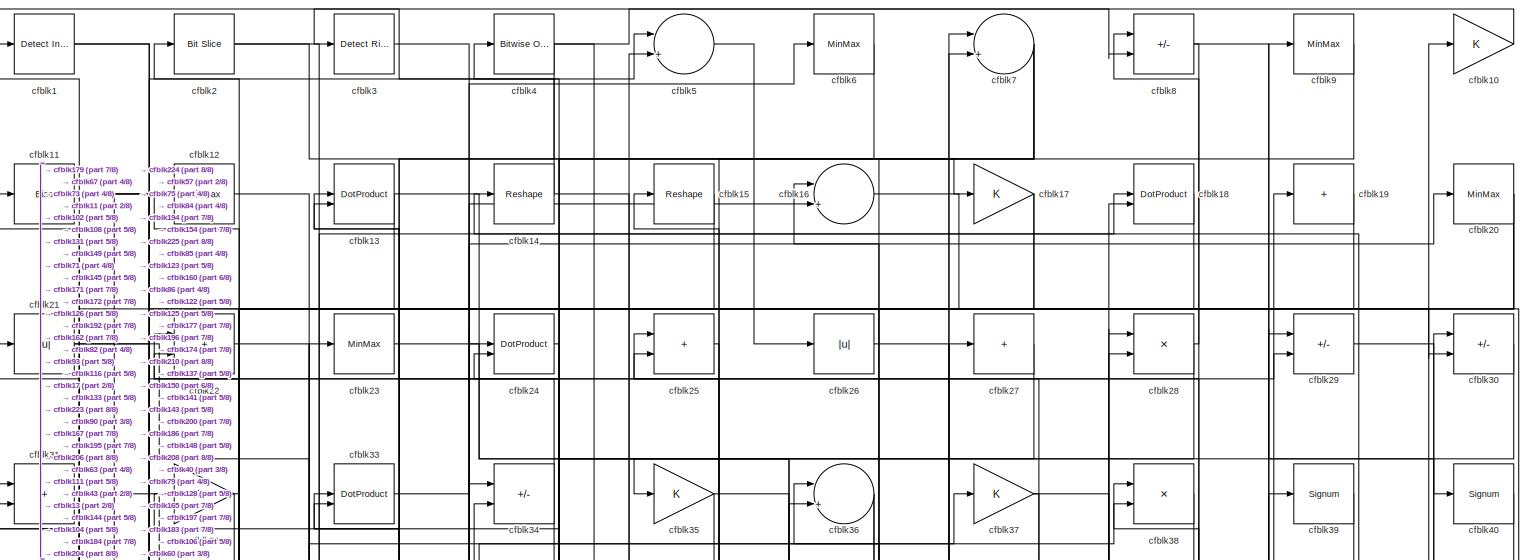
[diagram: root canvas - part 1/8, full width, top band]
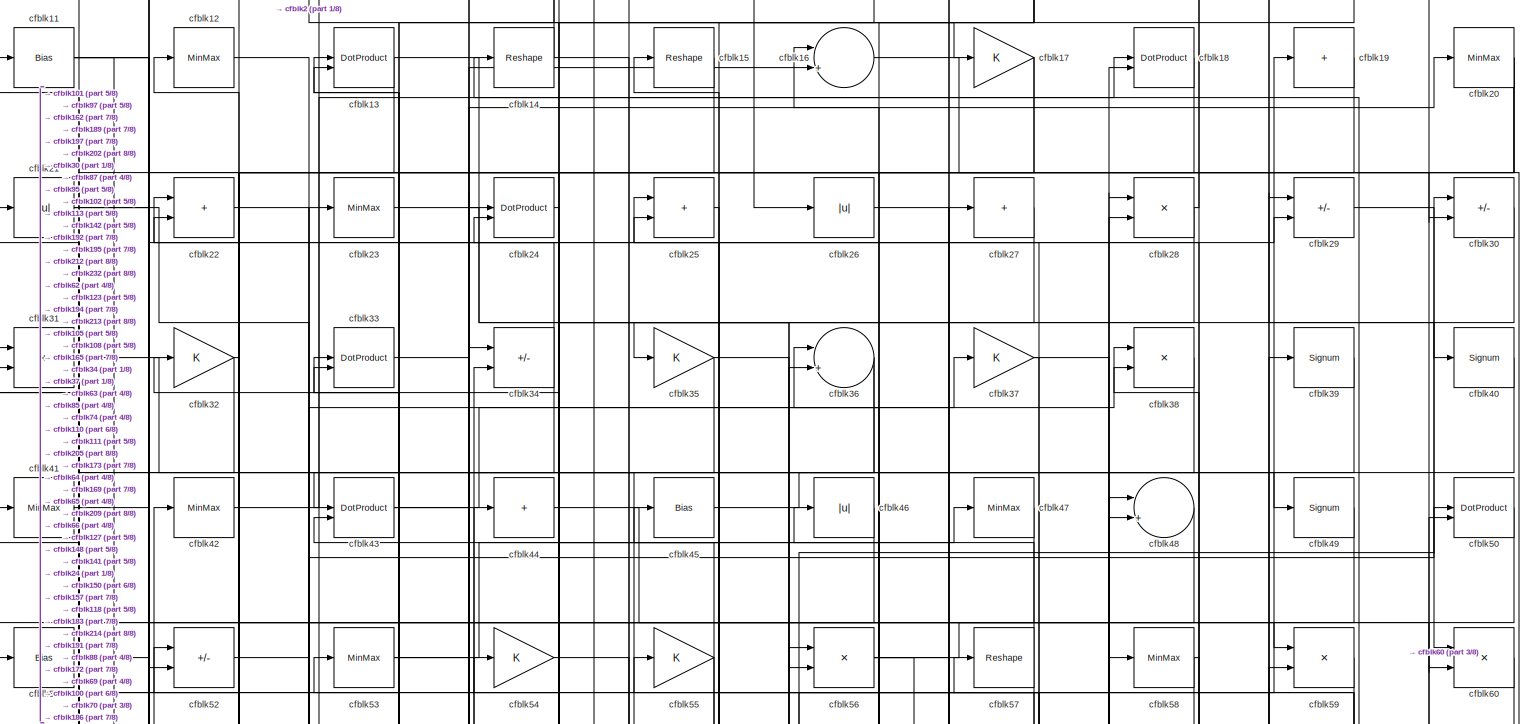
[diagram: root canvas - part 2/8, full width, top band]
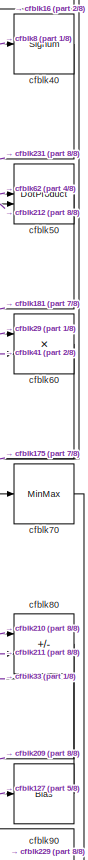
[diagram: root canvas - part 3/8, top right region]
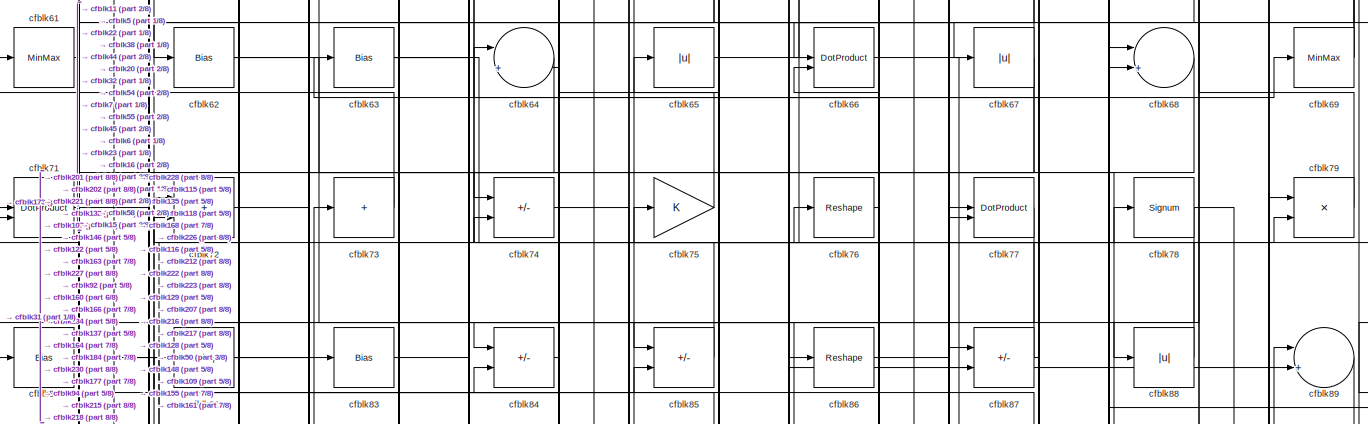
[diagram: root canvas - part 4/8, full width, top band]
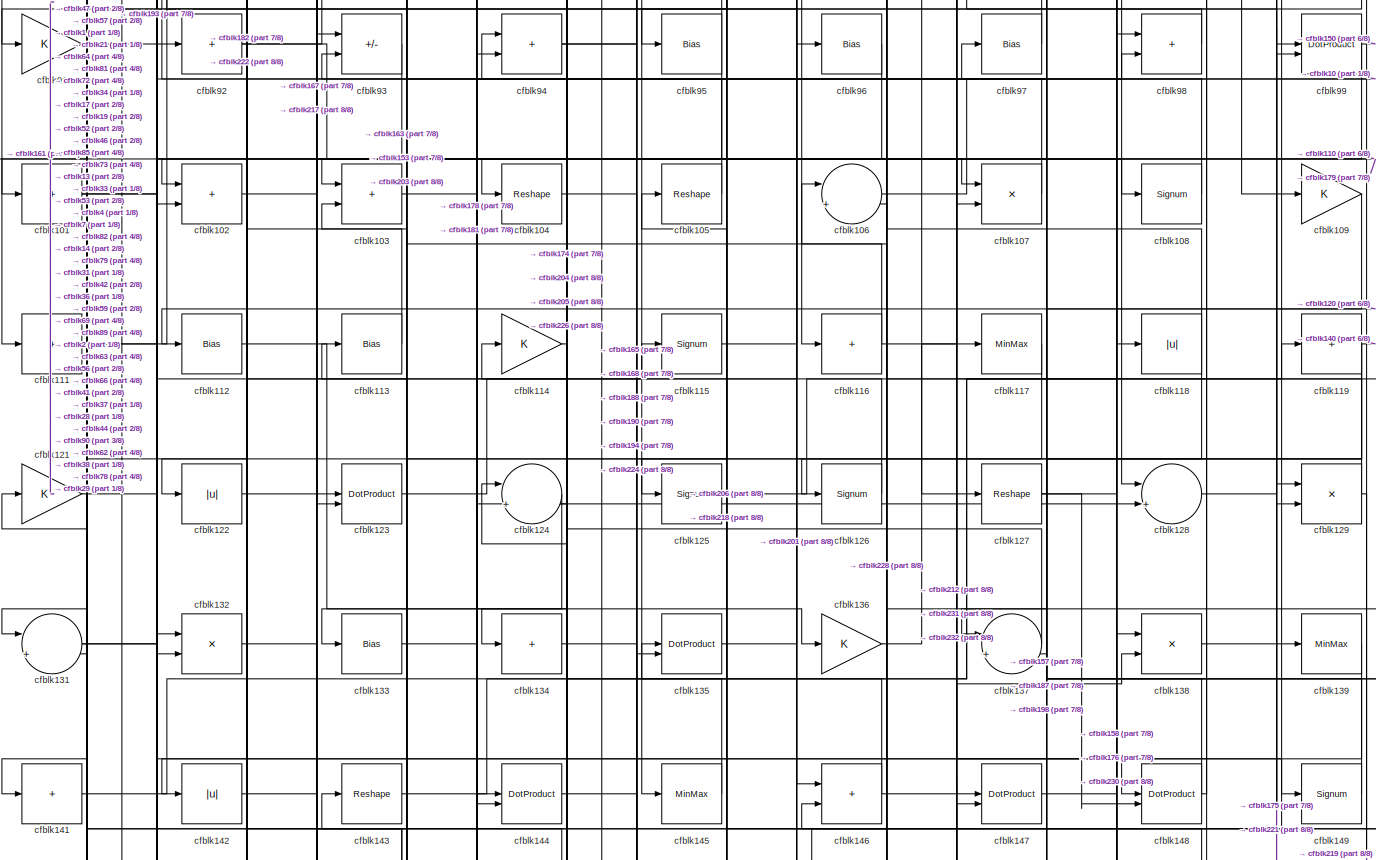
[diagram: root canvas - part 5/8, full width, middle band]
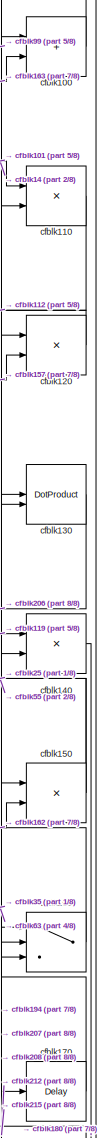
[diagram: root canvas - part 6/8, middle right region]
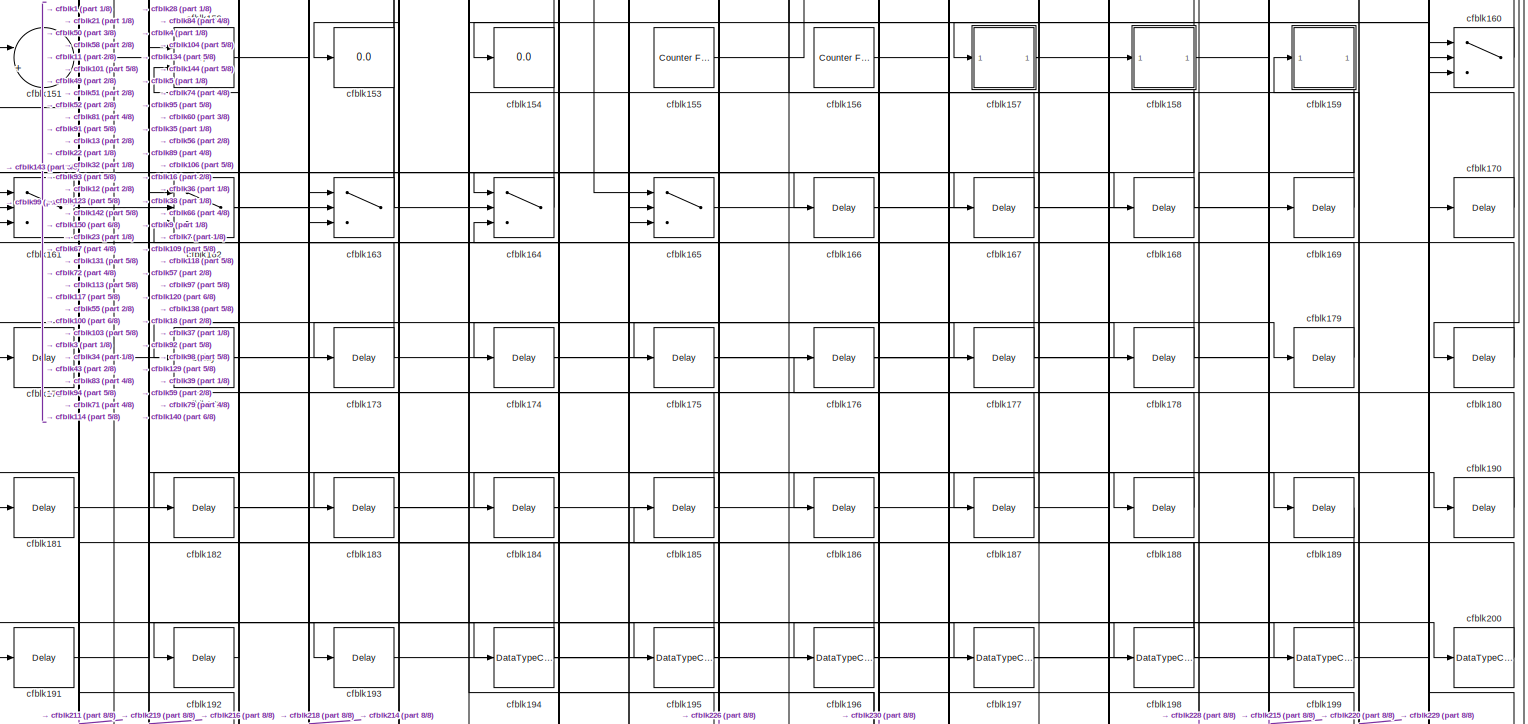
[diagram: root canvas - part 7/8, full width, bottom band]
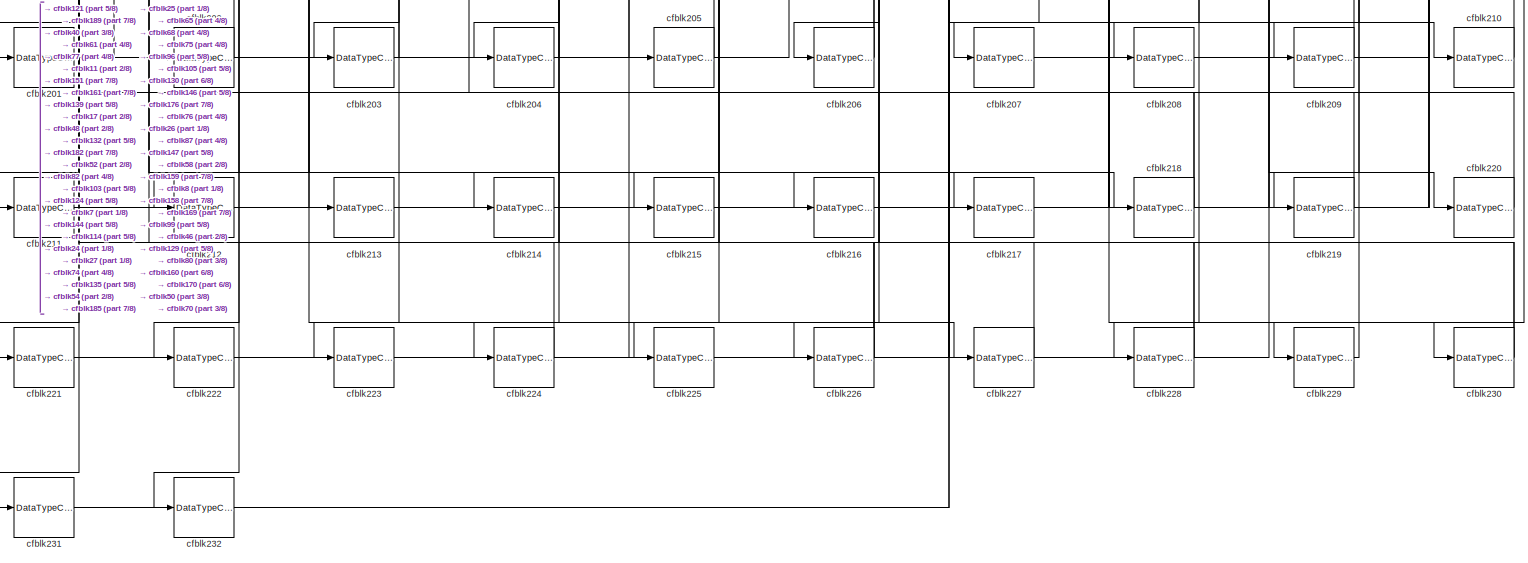
[diagram: root canvas - part 8/8, full width, bottom band]
MODEL slx_ea85b40ced68
KIND model
CONFIG AbsTol = auto
CONFIG EnableMultiTasking = off
CONFIG FixedStep = auto
CONFIG MaxStep = auto
CONFIG MinStep = auto
CONFIG RelTol = 1e-3
CONFIG SampleTimeConstraint = Unconstrained
CONFIG SolverName = VariableStepAuto
CONFIG StartTime = 0.0
CONFIG StopTime = 10.0
BLOCK [Reference] cfblk1  REF=simulink/Logic and Bit
Operations/Detect
Increase
  LibrarySourceBlock = hdlsllib/Logic and Bit\nOperations/Detect\nIncrease
  SourceBlock = simulink/Logic and Bit\nOperations/Detect\nIncrease
  SourceType = Detect Increase
BLOCK [Gain] cfblk10
BLOCK [Sum] cfblk100
  IconShape = rectangular
BLOCK [Sum] cfblk101
  IconShape = rectangular
  Inputs = +
BLOCK [Sum] cfblk102
  IconShape = rectangular
BLOCK [Sum] cfblk103
  IconShape = rectangular
BLOCK [Reshape] cfblk104
BLOCK [Reshape] cfblk105
BLOCK [Sum] cfblk106
  Inputs = |++
BLOCK [Product] cfblk107
  Inputs = */
  RndMeth = Zero
  SaturateOnIntegerOverflow = on
BLOCK [Signum] cfblk108
BLOCK [Gain] cfblk109
BLOCK [Bias] cfblk11
  Bias = 0.0
  SaturateOnIntegerOverflow = off
BLOCK [Product] cfblk110
  Inputs = */
  RndMeth = Zero
  SaturateOnIntegerOverflow = on
BLOCK [Sum] cfblk111
  IconShape = rectangular
  Inputs = +
BLOCK [Bias] cfblk112
  Bias = 0.0
  SaturateOnIntegerOverflow = off
BLOCK [Bias] cfblk113
  Bias = 0.0
  SaturateOnIntegerOverflow = off
BLOCK [Gain] cfblk114
BLOCK [Signum] cfblk115
BLOCK [Sum] cfblk116
  IconShape = rectangular
  Inputs = +
BLOCK [MinMax] cfblk117
BLOCK [Abs] cfblk118
  SaturateOnIntegerOverflow = off
BLOCK [Sum] cfblk119
  IconShape = rectangular
  Inputs = +
BLOCK [MinMax] cfblk12
BLOCK [Product] cfblk120
  Inputs = */
  RndMeth = Zero
  SaturateOnIntegerOverflow = on
BLOCK [Gain] cfblk121
BLOCK [Abs] cfblk122
  SaturateOnIntegerOverflow = off
BLOCK [DotProduct] cfblk123
  OutDataTypeStr = Inherit: Inherit via internal rule
BLOCK [Sum] cfblk124
  Inputs = |++
BLOCK [Signum] cfblk125
BLOCK [Signum] cfblk126
BLOCK [Reshape] cfblk127
BLOCK [Sum] cfblk128
  Inputs = |++
BLOCK [Product] cfblk129
  Inputs = */
  RndMeth = Zero
  SaturateOnIntegerOverflow = on
BLOCK [DotProduct] cfblk13
  OutDataTypeStr = Inherit: Inherit via internal rule
BLOCK [DotProduct] cfblk130
  OutDataTypeStr = Inherit: Inherit via internal rule
BLOCK [Sum] cfblk131
  Inputs = |++
BLOCK [Product] cfblk132
  Inputs = */
  RndMeth = Zero
  SaturateOnIntegerOverflow = on
BLOCK [Bias] cfblk133
  Bias = 0.0
  SaturateOnIntegerOverflow = off
BLOCK [Sum] cfblk134
  IconShape = rectangular
  Inputs = +
BLOCK [DotProduct] cfblk135
  OutDataTypeStr = Inherit: Inherit via internal rule
BLOCK [Gain] cfblk136
BLOCK [Sum] cfblk137
  Inputs = |++
BLOCK [Product] cfblk138
  Inputs = */
  RndMeth = Zero
  SaturateOnIntegerOverflow = on
BLOCK [MinMax] cfblk139
BLOCK [Reshape] cfblk14
BLOCK [Product] cfblk140
  Inputs = */
  RndMeth = Zero
  SaturateOnIntegerOverflow = on
BLOCK [Sum] cfblk141
  IconShape = rectangular
  Inputs = +
BLOCK [Abs] cfblk142
  SaturateOnIntegerOverflow = off
BLOCK [Reshape] cfblk143
BLOCK [DotProduct] cfblk144
  OutDataTypeStr = Inherit: Inherit via internal rule
BLOCK [MinMax] cfblk145
BLOCK [Sum] cfblk146
  IconShape = rectangular
BLOCK [DotProduct] cfblk147
  OutDataTypeStr = Inherit: Inherit via internal rule
BLOCK [DotProduct] cfblk148
  OutDataTypeStr = Inherit: Inherit via internal rule
BLOCK [Signum] cfblk149
BLOCK [Reshape] cfblk15
BLOCK [Product] cfblk150
  Inputs = */
  RndMeth = Zero
  SaturateOnIntegerOverflow = on
BLOCK [Sum] cfblk151
  Inputs = |++
BLOCK [Sum] cfblk152
  IconShape = rectangular
  Inputs = +-
BLOCK [Display] cfblk153
  Decimation = 1
BLOCK [Display] cfblk154
  Decimation = 1
BLOCK [Reference] cfblk155  REF=hdlsllib/Sources/Counter
Free-Running
  SourceBlock = hdlsllib/Sources/Counter\nFree-Running
  SourceType = Counter Free-Running
BLOCK [Reference] cfblk156  REF=hdlsllib/Sources/Counter
Free-Running
  SourceBlock = hdlsllib/Sources/Counter\nFree-Running
  SourceType = Counter Free-Running
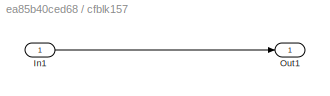
BLOCK [SubSystem] cfblk157
  LibrarySourceBlock = hdlsllib/Ports &\nSubsystems/Subsystem
BLOCK [Inport] cfblk157/In1
BLOCK [Outport] cfblk157/Out1
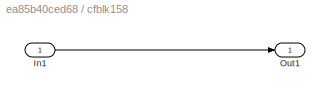
BLOCK [SubSystem] cfblk158
  LibrarySourceBlock = hdlsllib/Ports &\nSubsystems/Subsystem
BLOCK [Inport] cfblk158/In1
BLOCK [Outport] cfblk158/Out1
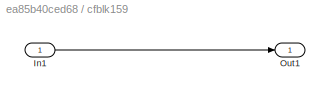
BLOCK [SubSystem] cfblk159
  LibrarySourceBlock = hdlsllib/Ports &\nSubsystems/Subsystem
BLOCK [Inport] cfblk159/In1
BLOCK [Outport] cfblk159/Out1
BLOCK [Sum] cfblk16
  Inputs = |++
BLOCK [Switch] cfblk160
  InputSameDT = off
  SaturateOnIntegerOverflow = off
BLOCK [Switch] cfblk161
  InputSameDT = off
  SaturateOnIntegerOverflow = off
BLOCK [Switch] cfblk162
  InputSameDT = off
  SaturateOnIntegerOverflow = off
BLOCK [Switch] cfblk163
  InputSameDT = off
  SaturateOnIntegerOverflow = off
BLOCK [Switch] cfblk164
  InputSameDT = off
  SaturateOnIntegerOverflow = off
BLOCK [Switch] cfblk165
  InputSameDT = off
  SaturateOnIntegerOverflow = off
BLOCK [Delay] cfblk166
  InputPortMap = u0
  SampleTime = 1
BLOCK [Delay] cfblk167
  InputPortMap = u0
  SampleTime = 1
BLOCK [Delay] cfblk168
  InputPortMap = u0
  SampleTime = 1
BLOCK [Delay] cfblk169
  InputPortMap = u0
  SampleTime = 1
BLOCK [Gain] cfblk17
BLOCK [Delay] cfblk170
  InputPortMap = u0
  SampleTime = 1
BLOCK [Delay] cfblk171
  InputPortMap = u0
  SampleTime = 1
BLOCK [Delay] cfblk172
  InputPortMap = u0
  SampleTime = 1
BLOCK [Delay] cfblk173
  InputPortMap = u0
  SampleTime = 1
BLOCK [Delay] cfblk174
  InputPortMap = u0
  SampleTime = 1
BLOCK [Delay] cfblk175
  InputPortMap = u0
  SampleTime = 1
BLOCK [Delay] cfblk176
  InputPortMap = u0
  SampleTime = 1
BLOCK [Delay] cfblk177
  InputPortMap = u0
  SampleTime = 1
BLOCK [Delay] cfblk178
  InputPortMap = u0
  SampleTime = 1
BLOCK [Delay] cfblk179
  InputPortMap = u0
  SampleTime = 1
BLOCK [DotProduct] cfblk18
  OutDataTypeStr = Inherit: Inherit via internal rule
BLOCK [Delay] cfblk180
  InputPortMap = u0
  SampleTime = 1
BLOCK [Delay] cfblk181
  InputPortMap = u0
  SampleTime = 1
BLOCK [Delay] cfblk182
  InputPortMap = u0
  SampleTime = 1
BLOCK [Delay] cfblk183
  InputPortMap = u0
  SampleTime = 1
BLOCK [Delay] cfblk184
  InputPortMap = u0
  SampleTime = 1
BLOCK [Delay] cfblk185
  InputPortMap = u0
  SampleTime = 1
BLOCK [Delay] cfblk186
  InputPortMap = u0
  SampleTime = 1
BLOCK [Delay] cfblk187
  InputPortMap = u0
  SampleTime = 1
BLOCK [Delay] cfblk188
  InputPortMap = u0
  SampleTime = 1
BLOCK [Delay] cfblk189
  InputPortMap = u0
  SampleTime = 1
BLOCK [Sum] cfblk19
  IconShape = rectangular
  Inputs = +
BLOCK [Delay] cfblk190
  InputPortMap = u0
  SampleTime = 1
BLOCK [Delay] cfblk191
  InputPortMap = u0
  SampleTime = 1
BLOCK [Delay] cfblk192
  InputPortMap = u0
  SampleTime = 1
BLOCK [Delay] cfblk193
  InputPortMap = u0
  SampleTime = 1
BLOCK [DataTypeConversion] cfblk194
  RndMeth = Floor
  SaturateOnIntegerOverflow = off
BLOCK [DataTypeConversion] cfblk195
  OutDataTypeStr = uint8
  RndMeth = Floor
  SaturateOnIntegerOverflow = off
BLOCK [DataTypeConversion] cfblk196
  OutDataTypeStr = uint8
  RndMeth = Floor
  SaturateOnIntegerOverflow = off
BLOCK [DataTypeConversion] cfblk197
  OutDataTypeStr = uint8
  RndMeth = Floor
  SaturateOnIntegerOverflow = off
BLOCK [DataTypeConversion] cfblk198
  RndMeth = Floor
  SaturateOnIntegerOverflow = off
BLOCK [DataTypeConversion] cfblk199
  OutDataTypeStr = uint8
  RndMeth = Floor
  SaturateOnIntegerOverflow = off
BLOCK [Reference] cfblk2  REF=hdlsllib/Logic and Bit
Operations/Bit Slice
  SourceBlock = hdlsllib/Logic and Bit\nOperations/Bit Slice
  SourceType = Bit Slice
BLOCK [MinMax] cfblk20
BLOCK [DataTypeConversion] cfblk200
  OutDataTypeStr = uint8
  RndMeth = Floor
  SaturateOnIntegerOverflow = off
BLOCK [DataTypeConversion] cfblk201
  OutDataTypeStr = uint8
  RndMeth = Floor
  SaturateOnIntegerOverflow = off
BLOCK [DataTypeConversion] cfblk202
  OutDataTypeStr = uint8
  RndMeth = Floor
  SaturateOnIntegerOverflow = off
BLOCK [DataTypeConversion] cfblk203
  OutDataTypeStr = uint8
  RndMeth = Floor
  SaturateOnIntegerOverflow = off
BLOCK [DataTypeConversion] cfblk204
  OutDataTypeStr = uint8
  RndMeth = Floor
  SaturateOnIntegerOverflow = off
BLOCK [DataTypeConversion] cfblk205
  OutDataTypeStr = uint8
  RndMeth = Floor
  SaturateOnIntegerOverflow = off
BLOCK [DataTypeConversion] cfblk206
  RndMeth = Floor
  SaturateOnIntegerOverflow = off
BLOCK [DataTypeConversion] cfblk207
  OutDataTypeStr = uint8
  RndMeth = Floor
  SaturateOnIntegerOverflow = off
BLOCK [DataTypeConversion] cfblk208
  OutDataTypeStr = uint8
  RndMeth = Floor
  SaturateOnIntegerOverflow = off
BLOCK [DataTypeConversion] cfblk209
  OutDataTypeStr = uint8
  RndMeth = Floor
  SaturateOnIntegerOverflow = off
BLOCK [Abs] cfblk21
  SaturateOnIntegerOverflow = off
BLOCK [DataTypeConversion] cfblk210
  OutDataTypeStr = uint8
  RndMeth = Floor
  SaturateOnIntegerOverflow = off
BLOCK [DataTypeConversion] cfblk211
  OutDataTypeStr = uint8
  RndMeth = Floor
  SaturateOnIntegerOverflow = off
BLOCK [DataTypeConversion] cfblk212
  RndMeth = Floor
  SaturateOnIntegerOverflow = off
BLOCK [DataTypeConversion] cfblk213
  OutDataTypeStr = uint8
  RndMeth = Floor
  SaturateOnIntegerOverflow = off
BLOCK [DataTypeConversion] cfblk214
  OutDataTypeStr = uint8
  RndMeth = Floor
  SaturateOnIntegerOverflow = off
BLOCK [DataTypeConversion] cfblk215
  RndMeth = Floor
  SaturateOnIntegerOverflow = off
BLOCK [DataTypeConversion] cfblk216
  OutDataTypeStr = uint8
  RndMeth = Floor
  SaturateOnIntegerOverflow = off
BLOCK [DataTypeConversion] cfblk217
  OutDataTypeStr = uint8
  RndMeth = Floor
  SaturateOnIntegerOverflow = off
BLOCK [DataTypeConversion] cfblk218
  RndMeth = Floor
  SaturateOnIntegerOverflow = off
BLOCK [DataTypeConversion] cfblk219
  OutDataTypeStr = uint8
  RndMeth = Floor
  SaturateOnIntegerOverflow = off
BLOCK [Sum] cfblk22
  IconShape = rectangular
BLOCK [DataTypeConversion] cfblk220
  OutDataTypeStr = uint8
  RndMeth = Floor
  SaturateOnIntegerOverflow = off
BLOCK [DataTypeConversion] cfblk221
  OutDataTypeStr = uint8
  RndMeth = Floor
  SaturateOnIntegerOverflow = off
BLOCK [DataTypeConversion] cfblk222
  OutDataTypeStr = uint8
  RndMeth = Floor
  SaturateOnIntegerOverflow = off
BLOCK [DataTypeConversion] cfblk223
  OutDataTypeStr = uint8
  RndMeth = Floor
  SaturateOnIntegerOverflow = off
BLOCK [DataTypeConversion] cfblk224
  RndMeth = Floor
  SaturateOnIntegerOverflow = off
BLOCK [DataTypeConversion] cfblk225
  OutDataTypeStr = uint8
  RndMeth = Floor
  SaturateOnIntegerOverflow = off
BLOCK [DataTypeConversion] cfblk226
  RndMeth = Floor
  SaturateOnIntegerOverflow = off
BLOCK [DataTypeConversion] cfblk227
  OutDataTypeStr = uint8
  RndMeth = Floor
  SaturateOnIntegerOverflow = off
BLOCK [DataTypeConversion] cfblk228
  RndMeth = Floor
  SaturateOnIntegerOverflow = off
BLOCK [DataTypeConversion] cfblk229
  OutDataTypeStr = uint8
  RndMeth = Floor
  SaturateOnIntegerOverflow = off
BLOCK [MinMax] cfblk23
BLOCK [DataTypeConversion] cfblk230
  RndMeth = Floor
  SaturateOnIntegerOverflow = off
BLOCK [DataTypeConversion] cfblk231
  OutDataTypeStr = uint8
  RndMeth = Floor
  SaturateOnIntegerOverflow = off
BLOCK [DataTypeConversion] cfblk232
  OutDataTypeStr = uint8
  RndMeth = Floor
  SaturateOnIntegerOverflow = off
BLOCK [DotProduct] cfblk24
  OutDataTypeStr = Inherit: Inherit via internal rule
BLOCK [Sum] cfblk25
  IconShape = rectangular
BLOCK [Abs] cfblk26
  SaturateOnIntegerOverflow = off
BLOCK [Sum] cfblk27
  IconShape = rectangular
  Inputs = +
BLOCK [Product] cfblk28
  Inputs = */
  RndMeth = Zero
  SaturateOnIntegerOverflow = on
BLOCK [Sum] cfblk29
  IconShape = rectangular
  Inputs = +-
BLOCK [Reference] cfblk3  REF=hdlsllib/Logic and Bit
Operations/Detect Rise
Nonnegative
  SourceBlock = hdlsllib/Logic and Bit\nOperations/Detect Rise\nNonnegative
  SourceType = Detect Rise Nonnegative
BLOCK [Sum] cfblk30
  IconShape = rectangular
  Inputs = +-
BLOCK [Sum] cfblk31
  IconShape = rectangular
BLOCK [Gain] cfblk32
BLOCK [DotProduct] cfblk33
  OutDataTypeStr = Inherit: Inherit via internal rule
BLOCK [Sum] cfblk34
  IconShape = rectangular
  Inputs = +-
BLOCK [Gain] cfblk35
BLOCK [Sum] cfblk36
  Inputs = |++
BLOCK [Gain] cfblk37
BLOCK [Product] cfblk38
  Inputs = */
  RndMeth = Zero
  SaturateOnIntegerOverflow = on
BLOCK [Signum] cfblk39
BLOCK [Reference] cfblk4  REF=simulink/Logic and Bit
Operations/Bitwise
Operator
  LibrarySourceBlock = hdlsllib/Logic and Bit\nOperations/Bitwise\nOperator
  SourceBlock = simulink/Logic and Bit\nOperations/Bitwise\nOperator
  SourceType = Bitwise Operator
BLOCK [Signum] cfblk40
BLOCK [MinMax] cfblk41
BLOCK [MinMax] cfblk42
BLOCK [DotProduct] cfblk43
  OutDataTypeStr = Inherit: Inherit via internal rule
BLOCK [Sum] cfblk44
  IconShape = rectangular
  Inputs = +
BLOCK [Bias] cfblk45
  Bias = 0.0
  SaturateOnIntegerOverflow = off
BLOCK [Abs] cfblk46
  SaturateOnIntegerOverflow = off
BLOCK [MinMax] cfblk47
BLOCK [Sum] cfblk48
  Inputs = |++
BLOCK [Signum] cfblk49
BLOCK [Sum] cfblk5
  Inputs = |++
BLOCK [DotProduct] cfblk50
  OutDataTypeStr = Inherit: Inherit via internal rule
BLOCK [Bias] cfblk51
  Bias = 0.0
  SaturateOnIntegerOverflow = off
BLOCK [Sum] cfblk52
  IconShape = rectangular
  Inputs = +-
BLOCK [MinMax] cfblk53
BLOCK [Gain] cfblk54
BLOCK [Gain] cfblk55
BLOCK [Product] cfblk56
  Inputs = */
  RndMeth = Zero
  SaturateOnIntegerOverflow = on
BLOCK [Reshape] cfblk57
BLOCK [MinMax] cfblk58
BLOCK [Product] cfblk59
  Inputs = */
  RndMeth = Zero
  SaturateOnIntegerOverflow = on
BLOCK [MinMax] cfblk6
BLOCK [Product] cfblk60
  Inputs = */
  RndMeth = Zero
  SaturateOnIntegerOverflow = on
BLOCK [MinMax] cfblk61
BLOCK [Bias] cfblk62
  Bias = 0.0
  SaturateOnIntegerOverflow = off
BLOCK [Bias] cfblk63
  Bias = 0.0
  SaturateOnIntegerOverflow = off
BLOCK [Sum] cfblk64
  Inputs = |++
BLOCK [Abs] cfblk65
  SaturateOnIntegerOverflow = off
BLOCK [DotProduct] cfblk66
  OutDataTypeStr = Inherit: Inherit via internal rule
BLOCK [Abs] cfblk67
  SaturateOnIntegerOverflow = off
BLOCK [Sum] cfblk68
  Inputs = |++
BLOCK [MinMax] cfblk69
BLOCK [Sum] cfblk7
  Inputs = |++
BLOCK [MinMax] cfblk70
BLOCK [DotProduct] cfblk71
  OutDataTypeStr = Inherit: Inherit via internal rule
BLOCK [Sum] cfblk72
  IconShape = rectangular
BLOCK [Sum] cfblk73
  IconShape = rectangular
  Inputs = +
BLOCK [Sum] cfblk74
  IconShape = rectangular
  Inputs = +-
BLOCK [Gain] cfblk75
BLOCK [Reshape] cfblk76
BLOCK [DotProduct] cfblk77
  OutDataTypeStr = Inherit: Inherit via internal rule
BLOCK [Signum] cfblk78
BLOCK [Product] cfblk79
  Inputs = */
  RndMeth = Zero
  SaturateOnIntegerOverflow = on
BLOCK [Sum] cfblk8
  IconShape = rectangular
  Inputs = +-
BLOCK [Sum] cfblk80
  IconShape = rectangular
  Inputs = +-
BLOCK [Bias] cfblk81
  Bias = 0.0
  SaturateOnIntegerOverflow = off
BLOCK [Reshape] cfblk82
BLOCK [Bias] cfblk83
  Bias = 0.0
  SaturateOnIntegerOverflow = off
BLOCK [Sum] cfblk84
  IconShape = rectangular
  Inputs = +-
BLOCK [Sum] cfblk85
  IconShape = rectangular
  Inputs = +-
BLOCK [Reshape] cfblk86
BLOCK [Sum] cfblk87
  IconShape = rectangular
  Inputs = +-
BLOCK [Abs] cfblk88
  SaturateOnIntegerOverflow = off
BLOCK [Sum] cfblk89
  Inputs = |++
BLOCK [MinMax] cfblk9
BLOCK [Bias] cfblk90
  Bias = 0.0
  SaturateOnIntegerOverflow = off
BLOCK [Gain] cfblk91
BLOCK [Sum] cfblk92
  IconShape = rectangular
  Inputs = +
BLOCK [Sum] cfblk93
  IconShape = rectangular
  Inputs = +-
BLOCK [Sum] cfblk94
  IconShape = rectangular
BLOCK [Bias] cfblk95
  Bias = 0.0
  SaturateOnIntegerOverflow = off
BLOCK [Bias] cfblk96
  Bias = 0.0
  SaturateOnIntegerOverflow = off
BLOCK [Bias] cfblk97
  Bias = 0.0
  SaturateOnIntegerOverflow = off
BLOCK [Sum] cfblk98
  IconShape = rectangular
BLOCK [DotProduct] cfblk99
  OutDataTypeStr = Inherit: Inherit via internal rule
LINE cfblk100:1 -> cfblk14:1
NET cfblk101:1 -> cfblk110:2, cfblk179:1
LINE cfblk102:1 -> cfblk107:1
LINE cfblk103:1 -> cfblk178:1
LINE cfblk104:1 -> cfblk190:1
LINE cfblk105:1 -> cfblk53:1
LINE cfblk106:1 -> cfblk10:1
LINE cfblk107:1 -> cfblk72:1
LINE cfblk108:1 -> cfblk13:2
LINE cfblk109:1 -> cfblk157:1
LINE cfblk10:1 -> cfblk3:1
LINE cfblk110:1 -> cfblk140:2
NET cfblk111:1 -> cfblk34:2, cfblk98:2
LINE cfblk112:1 -> cfblk136:1
LINE cfblk113:1 -> cfblk52:1
LINE cfblk114:1 -> cfblk174:1
LINE cfblk115:1 -> cfblk69:1
NET cfblk116:1 -> cfblk33:2, cfblk78:1
LINE cfblk117:1 -> cfblk153:1
NET cfblk118:1 -> cfblk187:1, cfblk63:1
NET cfblk119:1 -> cfblk126:1, cfblk131:1, cfblk137:2, cfblk140:1
NET cfblk11:1 -> cfblk189:1, cfblk202:1, cfblk30:2, cfblk87:2
LINE cfblk120:1 -> cfblk112:1
LINE cfblk121:1 -> cfblk92:1
LINE cfblk122:1 -> cfblk85:2
LINE cfblk123:1 -> cfblk36:2
LINE cfblk124:1 -> cfblk203:1
LINE cfblk125:1 -> cfblk119:1
LINE cfblk126:1 -> cfblk2:1
NET cfblk127:1 -> cfblk148:2, cfblk90:1
LINE cfblk128:1 -> cfblk29:1
NET cfblk129:1 -> cfblk106:2, cfblk219:1
LINE cfblk12:1 -> cfblk194:1
LINE cfblk130:1 -> cfblk206:1
NET cfblk131:1 -> cfblk115:1, cfblk29:2
LINE cfblk132:1 -> cfblk217:1
LINE cfblk133:1 -> cfblk128:2
LINE cfblk134:1 -> cfblk188:1
LINE cfblk135:1 -> cfblk89:2
LINE cfblk136:1 -> cfblk117:1
LINE cfblk137:1 -> cfblk82:1
LINE cfblk138:1 -> cfblk139:1
LINE cfblk139:1 -> cfblk222:1
NET cfblk13:1 -> cfblk192:1, cfblk56:2
LINE cfblk140:1 -> cfblk180:1
LINE cfblk141:1 -> cfblk28:1
LINE cfblk142:1 -> cfblk167:1
LINE cfblk143:1 -> cfblk28:2
LINE cfblk144:1 -> cfblk168:1
LINE cfblk145:1 -> cfblk4:1
NET cfblk146:1 -> cfblk135:1, cfblk138:2
LINE cfblk147:1 -> cfblk230:1
NET cfblk148:1 -> cfblk38:1, cfblk64:1
LINE cfblk149:1 -> cfblk94:1
NET cfblk14:1 -> cfblk110:1, cfblk111:1
NET cfblk150:1 -> cfblk25:2, cfblk55:1
LINE cfblk151:1 -> cfblk218:1
LINE cfblk152:1 -> cfblk198:1
LINE cfblk155:1 -> cfblk89:1
LINE cfblk156:1 -> cfblk199:1
LINE cfblk157/In1:1 -> cfblk157/Out1:1
NET cfblk157:1 -> cfblk120:2, cfblk57:1
LINE cfblk158/In1:1 -> cfblk158/Out1:1
NET cfblk158:1 -> cfblk143:1, cfblk161:3, cfblk220:1
LINE cfblk159/In1:1 -> cfblk159/Out1:1
LINE cfblk159:1 -> cfblk228:1
LINE cfblk15:1 -> cfblk43:1
LINE cfblk160:1 -> cfblk25:1
LINE cfblk161:1 -> cfblk216:1
NET cfblk162:1 -> cfblk150:2, cfblk23:1
NET cfblk163:1 -> cfblk100:2, cfblk131:2, cfblk72:2
LINE cfblk164:1 -> cfblk71:2
LINE cfblk165:1 -> cfblk39:1
LINE cfblk166:1 -> cfblk79:1
LINE cfblk167:1 -> cfblk34:1
LINE cfblk168:1 -> cfblk66:2
LINE cfblk169:1 -> cfblk56:1
LINE cfblk16:1 -> cfblk70:1
LINE cfblk170:1 -> cfblk100:1
LINE cfblk171:1 -> cfblk163:2
LINE cfblk172:1 -> cfblk59:2
LINE cfblk173:1 -> cfblk71:1
LINE cfblk174:1 -> cfblk7:2
LINE cfblk175:1 -> cfblk129:2
LINE cfblk176:1 -> cfblk138:1
LINE cfblk177:1 -> cfblk36:1
LINE cfblk178:1 -> cfblk123:1
LINE cfblk179:1 -> cfblk1:1
NET cfblk17:1 -> cfblk102:1, cfblk232:1
LINE cfblk180:1 -> cfblk163:1
LINE cfblk181:1 -> cfblk94:2
LINE cfblk182:1 -> cfblk214:1
LINE cfblk183:1 -> cfblk18:2
LINE cfblk184:1 -> cfblk84:2
LINE cfblk185:1 -> cfblk164:3
LINE cfblk186:1 -> cfblk16:1
LINE cfblk187:1 -> cfblk162:3
LINE cfblk188:1 -> cfblk106:1
LINE cfblk189:1 -> cfblk211:1
LINE cfblk18:1 -> cfblk66:1
LINE cfblk190:1 -> cfblk162:1
LINE cfblk191:1 -> cfblk52:2
LINE cfblk192:1 -> cfblk22:2
LINE cfblk193:1 -> cfblk98:1
NET cfblk194:1 -> cfblk113:1, cfblk120:1, cfblk5:2
LINE cfblk195:1 -> cfblk12:1
LINE cfblk196:1 -> cfblk21:1
LINE cfblk197:1 -> cfblk9:1
NET cfblk198:1 -> cfblk93:2, cfblk97:1
LINE cfblk199:1 -> cfblk152:1
LINE cfblk19:1 -> cfblk142:1
NET cfblk1:1 -> cfblk108:1, cfblk149:1
LINE cfblk200:1 -> cfblk152:2
LINE cfblk201:1 -> cfblk96:1
LINE cfblk202:1 -> cfblk61:1
LINE cfblk203:1 -> cfblk103:2
LINE cfblk204:1 -> cfblk124:1
LINE cfblk205:1 -> cfblk124:2
NET cfblk206:1 -> cfblk105:1, cfblk24:1
LINE cfblk207:1 -> cfblk130:1
LINE cfblk208:1 -> cfblk130:2
LINE cfblk209:1 -> cfblk46:1
NET cfblk20:1 -> cfblk51:1, cfblk62:1, cfblk74:1
LINE cfblk210:1 -> cfblk80:1
LINE cfblk211:1 -> cfblk80:2
NET cfblk212:1 -> cfblk160:1, cfblk50:2, cfblk58:1, cfblk87:1, cfblk99:2
LINE cfblk213:1 -> cfblk48:1
LINE cfblk214:1 -> cfblk48:2
NET cfblk215:1 -> cfblk169:1, cfblk170:1
LINE cfblk216:1 -> cfblk68:1
LINE cfblk217:1 -> cfblk68:2
NET cfblk218:1 -> cfblk144:1, cfblk65:1
LINE cfblk219:1 -> cfblk151:1
NET cfblk21:1 -> cfblk102:2, cfblk93:1
LINE cfblk220:1 -> cfblk151:2
LINE cfblk221:1 -> cfblk99:1
LINE cfblk222:1 -> cfblk77:1
LINE cfblk223:1 -> cfblk77:2
NET cfblk224:1 -> cfblk132:1, cfblk135:2
LINE cfblk225:1 -> cfblk27:1
NET cfblk226:1 -> cfblk114:1, cfblk121:1, cfblk185:1
LINE cfblk227:1 -> cfblk76:1
NET cfblk228:1 -> cfblk146:2, cfblk75:1
LINE cfblk229:1 -> cfblk159:1
LINE cfblk22:1 -> cfblk67:1
NET cfblk230:1 -> cfblk176:1, cfblk74:2
LINE cfblk231:1 -> cfblk147:1
LINE cfblk232:1 -> cfblk147:2
LINE cfblk23:1 -> cfblk86:1
LINE cfblk24:1 -> cfblk204:1
LINE cfblk25:1 -> cfblk225:1
LINE cfblk26:1 -> cfblk210:1
LINE cfblk27:1 -> cfblk224:1
NET cfblk28:1 -> cfblk184:1, cfblk8:1
LINE cfblk29:1 -> cfblk60:1
NET cfblk2:1 -> cfblk116:1, cfblk17:1
LINE cfblk30:1 -> cfblk35:1
LINE cfblk31:1 -> cfblk145:1
NET cfblk32:1 -> cfblk171:1, cfblk172:1
LINE cfblk33:1 -> cfblk6:1
NET cfblk34:1 -> cfblk13:1, cfblk144:2
NET cfblk35:1 -> cfblk154:1, cfblk160:2
NET cfblk36:1 -> cfblk122:1, cfblk125:1
NET cfblk37:1 -> cfblk137:1, cfblk200:1
LINE cfblk38:1 -> cfblk186:1
LINE cfblk39:1 -> cfblk183:1
LINE cfblk3:1 -> cfblk195:1
LINE cfblk40:1 -> cfblk231:1
LINE cfblk41:1 -> cfblk60:2
LINE cfblk42:1 -> cfblk18:1
NET cfblk43:1 -> cfblk165:3, cfblk37:1
LINE cfblk44:1 -> cfblk118:1
LINE cfblk45:1 -> cfblk49:1
LINE cfblk46:1 -> cfblk123:2
LINE cfblk47:1 -> cfblk101:1
LINE cfblk48:1 -> cfblk212:1
LINE cfblk49:1 -> cfblk162:2
NET cfblk4:1 -> cfblk133:1, cfblk165:1, cfblk8:2
LINE cfblk50:1 -> cfblk181:1
LINE cfblk51:1 -> cfblk197:1
LINE cfblk52:1 -> cfblk213:1
NET cfblk53:1 -> cfblk20:1, cfblk47:1
LINE cfblk54:1 -> cfblk205:1
NET cfblk55:1 -> cfblk173:1, cfblk43:2, cfblk64:2
NET cfblk56:1 -> cfblk127:1, cfblk148:1, cfblk59:1
NET cfblk57:1 -> cfblk141:1, cfblk24:2
NET cfblk58:1 -> cfblk191:1, cfblk88:1
LINE cfblk59:1 -> cfblk95:1
LINE cfblk5:1 -> cfblk26:1
LINE cfblk60:1 -> cfblk175:1
LINE cfblk61:1 -> cfblk201:1
NET cfblk62:1 -> cfblk128:1, cfblk50:1
NET cfblk63:1 -> cfblk160:3, cfblk16:2, cfblk30:1
LINE cfblk64:1 -> cfblk132:2
LINE cfblk65:1 -> cfblk19:1
LINE cfblk66:1 -> cfblk129:1
NET cfblk67:1 -> cfblk163:3, cfblk31:2, cfblk81:1
LINE cfblk68:1 -> cfblk215:1
NET cfblk69:1 -> cfblk11:1, cfblk15:1
LINE cfblk6:1 -> cfblk85:1
LINE cfblk70:1 -> cfblk229:1
LINE cfblk71:1 -> cfblk5:1
LINE cfblk72:1 -> cfblk83:1
LINE cfblk73:1 -> cfblk31:1
LINE cfblk74:1 -> cfblk177:1
LINE cfblk75:1 -> cfblk32:1
LINE cfblk76:1 -> cfblk226:1
LINE cfblk77:1 -> cfblk221:1
NET cfblk78:1 -> cfblk109:1, cfblk134:1
LINE cfblk79:1 -> cfblk22:1
NET cfblk7:1 -> cfblk104:1, cfblk223:1, cfblk84:1
LINE cfblk80:1 -> cfblk209:1
NET cfblk81:1 -> cfblk146:1, cfblk164:2
NET cfblk82:1 -> cfblk227:1, cfblk38:2
LINE cfblk83:1 -> cfblk166:1
LINE cfblk84:1 -> cfblk164:1
LINE cfblk85:1 -> cfblk44:1
LINE cfblk86:1 -> cfblk7:1
NET cfblk87:1 -> cfblk207:1, cfblk54:1
LINE cfblk88:1 -> cfblk45:1
LINE cfblk89:1 -> cfblk161:1
NET cfblk8:1 -> cfblk208:1, cfblk40:1
LINE cfblk90:1 -> cfblk33:1
LINE cfblk91:1 -> cfblk193:1
NET cfblk92:1 -> cfblk158:1, cfblk73:1
LINE cfblk93:1 -> cfblk182:1
NET cfblk94:1 -> cfblk107:2, cfblk79:2
NET cfblk95:1 -> cfblk165:2, cfblk42:1
LINE cfblk96:1 -> cfblk103:1
LINE cfblk97:1 -> cfblk41:1
LINE cfblk98:1 -> cfblk91:1
NET cfblk99:1 -> cfblk150:1, cfblk161:2
LINE cfblk9:1 -> cfblk196:1
note: NET lines group one-source signal fan-out (src -> all destinations, sorted); 1:1 wires keep LINE
